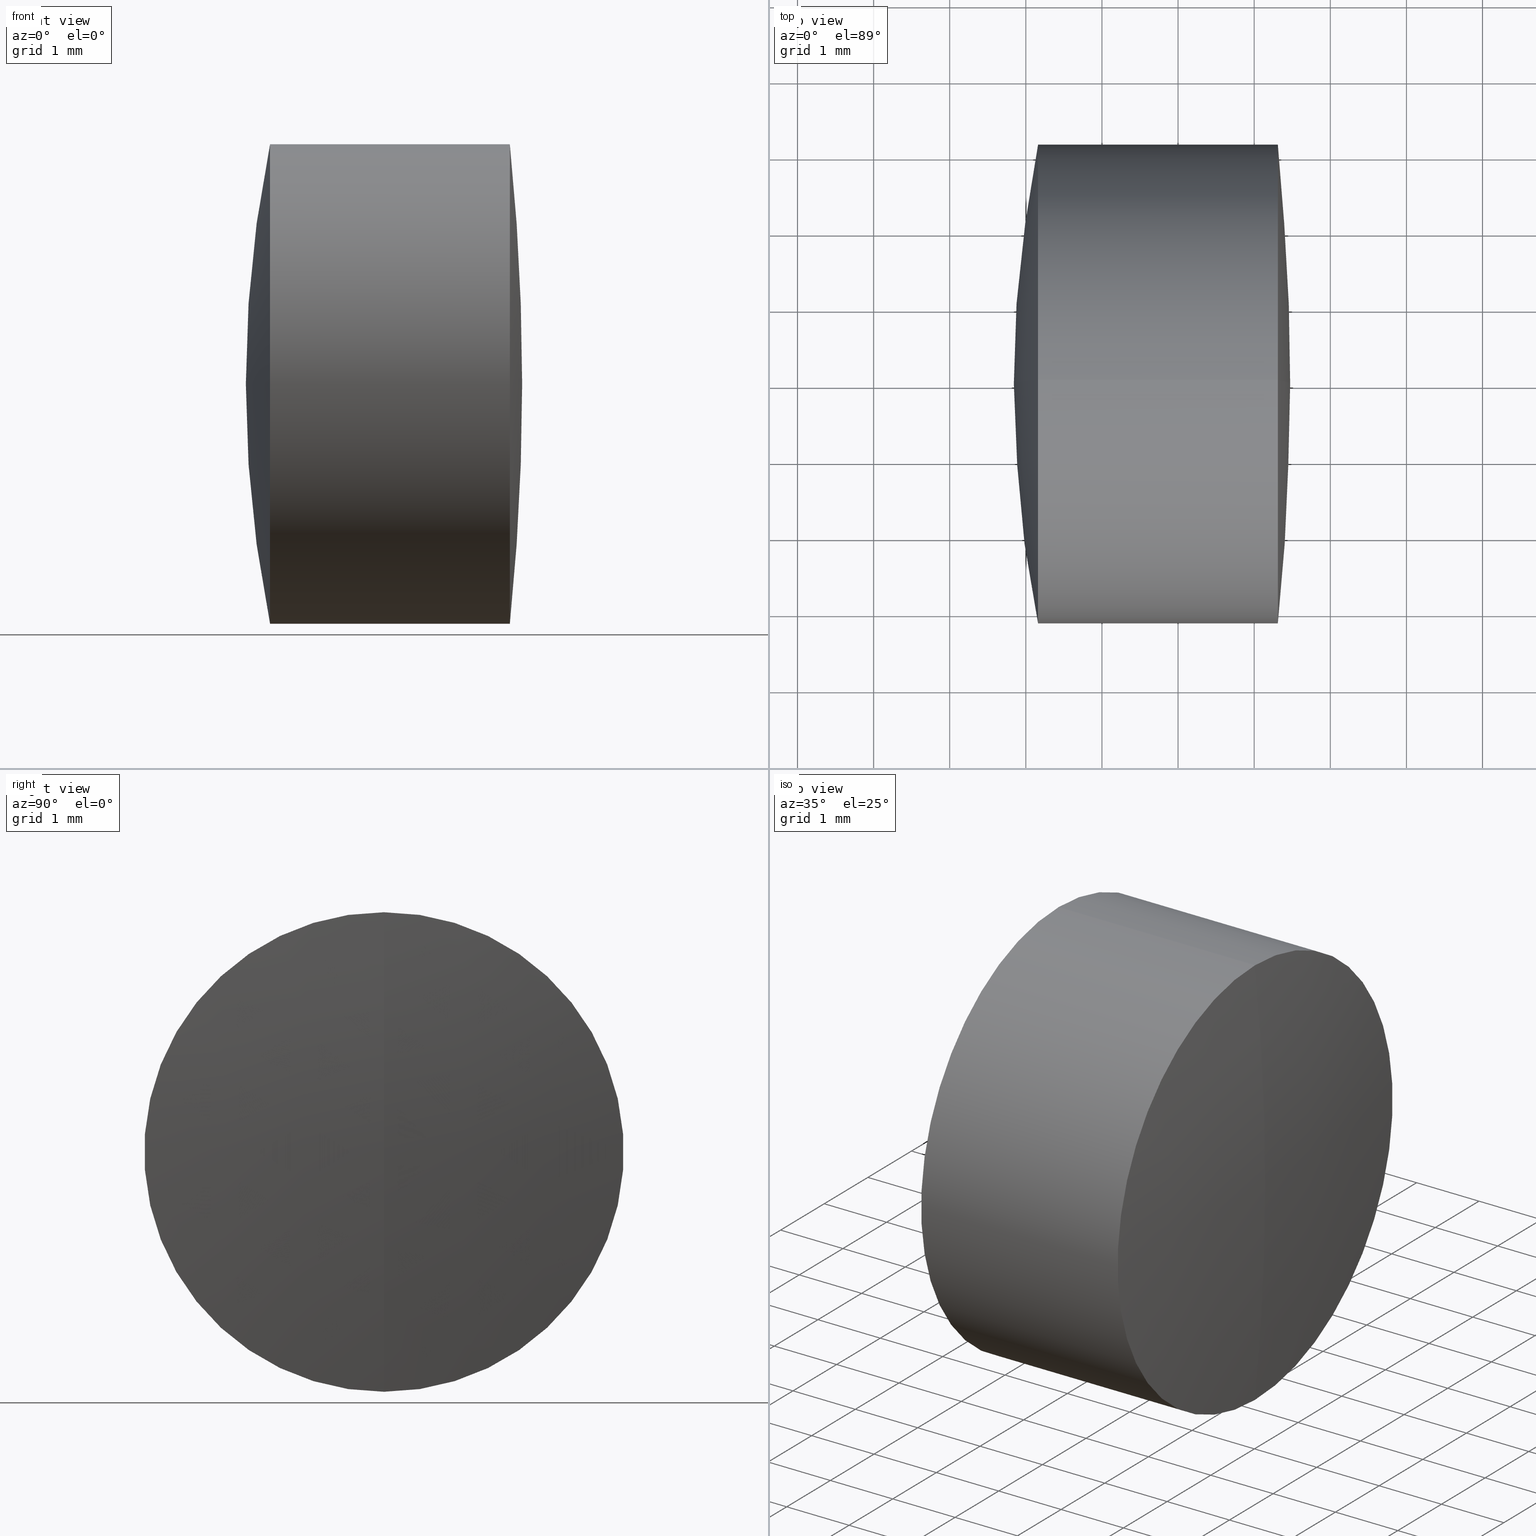
[diagram: canonical four-view strip — front | top / right | iso, engineering-drawing reading convention]
A machine part, canonical four-view strip (front | top / right | iso — engineering-drawing reading convention). The complete STEP part file that produces these views, byte-faithful:
ISO-10303-21;
HEADER;
FILE_DESCRIPTION (( 'STEP AP214' ),
    '1' );
FILE_NAME ('145011.STEP',
    '2019-05-07T03:39:07',
    ( 'user' ),
    ( '΢���й�' ),
    'SwSTEP 2.0',
    'SolidWorks 2016',
    '' );
FILE_SCHEMA (( 'AUTOMOTIVE_DESIGN' ));
ENDSEC;

DATA;
#1 = EDGE_CURVE ( 'NONE', #43, #34, #5, .T. ) ;
#2 = PRESENTATION_STYLE_ASSIGNMENT (( #296 ) ) ;
#3 = AXIS2_PLACEMENT_3D ( 'NONE', #249, #35, #138 ) ;
#4 = CLOSED_SHELL ( 'NONE', ( #106, #344, #24, #136, #272, #47 ) ) ;
#5 = LINE ( 'NONE', #149, #148 ) ;
#6 = CIRCLE ( 'NONE', #116, 3.149999999999993700 ) ;
#7 = CARTESIAN_POINT ( 'NONE',  ( -0.9204062977584012200, 0.0000000000000000000, -1.505155105265747400E-016 ) ) ;
#8 = DIRECTION ( 'NONE',  ( -1.000000000000000000, -0.0000000000000000000, -0.0000000000000000000 ) ) ;
#9 = COLOUR_RGB ( '',1.000000000000000000, 1.000000000000000000, 1.000000000000000000 ) ;
#10 = ORIENTED_EDGE ( 'NONE', *, *, #119, .F. ) ;
#11 = SURFACE_STYLE_FILL_AREA ( #174 ) ;
#12 = CARTESIAN_POINT ( 'NONE',  ( -0.8160621761658039000, 0.0000000000000000000, 0.0000000000000000000 ) ) ;
#13 = ORIENTED_EDGE ( 'NONE', *, *, #76, .F. ) ;
#14 = CIRCLE ( 'NONE', #343, 9.992999999999998600 ) ;
#15 = ORIENTED_EDGE ( 'NONE', *, *, #132, .T. ) ;
#16 = CARTESIAN_POINT ( 'NONE',  ( -20.28640629775840400, 0.0000000000000000000, 0.0000000000000000000 ) ) ;
#17 = EDGE_CURVE ( 'NONE', #43, #61, #6, .T. ) ;
#18 = CIRCLE ( 'NONE', #134, 9.992999999999998600 ) ;
#19 = CLOSED_SHELL ( 'NONE', ( #243, #216, #246, #29, #22, #77 ) ) ;
#20 = AXIS2_PLACEMENT_3D ( 'NONE', #146, #112, #142 ) ;
#21 = DIRECTION ( 'NONE',  ( 0.0000000000000000000, 1.000000000000000000, -0.0000000000000000000 ) ) ;
#22 = ADVANCED_FACE ( 'NONE', ( #292 ), #278, .T. ) ;
#23 = CARTESIAN_POINT ( 'NONE',  ( 8.563134654860508700, 0.0000000000000000000, 0.0000000000000000000 ) ) ;
#24 = ADVANCED_FACE ( 'NONE', ( #154 ), #215, .F. ) ;
#25 = DIRECTION ( 'NONE',  ( 0.0000000000000000000, 0.0000000000000000000, 1.000000000000000000 ) ) ;
#26 = EDGE_CURVE ( 'NONE', #290, #34, #241, .T. ) ;
#27 = AXIS2_PLACEMENT_3D ( 'NONE', #261, #91, #283 ) ;
#28 = DIRECTION ( 'NONE',  ( 0.0000000000000000000, -1.000000000000000000, 0.0000000000000000000 ) ) ;
#29 = ADVANCED_FACE ( 'NONE', ( #206 ), #49, .T. ) ;
#30 = ORIENTED_EDGE ( 'NONE', *, *, #342, .T. ) ;
#31 = CYLINDRICAL_SURFACE ( 'NONE', #20, 3.149999999999999900 ) ;
#32 = DIRECTION ( 'NONE',  ( -1.000000000000000000, -0.0000000000000000000, -0.0000000000000000000 ) ) ;
#33 = AXIS2_PLACEMENT_3D ( 'NONE', #23, #217, #25 ) ;
#34 = VERTEX_POINT ( 'NONE', #209 ) ;
#35 = DIRECTION ( 'NONE',  ( 0.0000000000000000000, -1.000000000000000000, 0.0000000000000000000 ) ) ;
#36 = DIRECTION ( 'NONE',  ( 0.0000000000000000000, -1.000000000000000000, 0.0000000000000000000 ) ) ;
#37 =( NAMED_UNIT ( * ) PLANE_ANGLE_UNIT ( ) SI_UNIT ( $, .RADIAN. ) );
#38 =( NAMED_UNIT ( * ) SI_UNIT ( $, .STERADIAN. ) SOLID_ANGLE_UNIT ( ) );
#39 = ORIENTED_EDGE ( 'NONE', *, *, #273, .F. ) ;
#40 = FACE_OUTER_BOUND ( 'NONE', #248, .T. ) ;
#41 = AXIS2_PLACEMENT_3D ( 'NONE', #7, #118, #225 ) ;
#42 = COLOUR_RGB ( '',1.000000000000000000, 1.000000000000000000, 1.000000000000000000 ) ;
#43 = VERTEX_POINT ( 'NONE', #104 ) ;
#44 = EDGE_CURVE ( 'NONE', #195, #117, #222, .T. ) ;
#45 = ORIENTED_EDGE ( 'NONE', *, *, #50, .T. ) ;
#46 =( NAMED_UNIT ( * ) SI_UNIT ( $, .STERADIAN. ) SOLID_ANGLE_UNIT ( ) );
#47 = ADVANCED_FACE ( 'NONE', ( #320 ), #304, .T. ) ;
#48 = CIRCLE ( 'NONE', #173, 3.149999999999999900 ) ;
#49 = SPHERICAL_SURFACE ( 'NONE', #208, 15.75900000000000200 ) ;
#50 = EDGE_CURVE ( 'NONE', #195, #267, #55, .T. ) ;
#51 = EDGE_LOOP ( 'NONE', ( #235, #281, #259, #336 ) ) ;
#52 = CIRCLE ( 'NONE', #96, 3.149999999999994100 ) ;
#53 = AXIS2_PLACEMENT_3D ( 'NONE', #62, #330, #59 ) ;
#54 = ADVANCED_BREP_SHAPE_REPRESENTATION ( '145011', ( #115, #335, #287 ), #194 ) ;
#55 = CIRCLE ( 'NONE', #68, 3.149999999999999900 ) ;
#56 = SURFACE_SIDE_STYLE ('',( #302 ) ) ;
#57 = ORIENTED_EDGE ( 'NONE', *, *, #342, .F. ) ;
#58 = DIRECTION ( 'NONE',  ( -1.000000000000000000, -0.0000000000000000000, -0.0000000000000000000 ) ) ;
#59 = DIRECTION ( 'NONE',  ( 0.0000000000000000000, 0.0000000000000000000, 1.000000000000000000 ) ) ;
#60 = AXIS2_PLACEMENT_3D ( 'NONE', #12, #151, #101 ) ;
#61 = VERTEX_POINT ( 'NONE', #274 ) ;
#62 = CARTESIAN_POINT ( 'NONE',  ( -20.28640629775840400, 0.0000000000000000000, 0.0000000000000000000 ) ) ;
#63 = CARTESIAN_POINT ( 'NONE',  ( -0.5519199926577972300, 0.0000000000000000000, 0.0000000000000000000 ) ) ;
#64 = APPLICATION_CONTEXT ( 'automotive_design' ) ;
#65 = CIRCLE ( 'NONE', #33, 3.149999999999999900 ) ;
#66 = APPLICATION_CONTEXT ( 'automotive_design' ) ;
#67 = EDGE_CURVE ( 'NONE', #141, #200, #18, .T. ) ;
#68 = AXIS2_PLACEMENT_3D ( 'NONE', #327, #196, #230 ) ;
#69 =( NAMED_UNIT ( * ) PLANE_ANGLE_UNIT ( ) SI_UNIT ( $, .RADIAN. ) );
#70 = DIRECTION ( 'NONE',  ( 0.0000000000000000000, 0.0000000000000000000, 1.000000000000000000 ) ) ;
#71 = ORIENTED_EDGE ( 'NONE', *, *, #26, .T. ) ;
#72 = FILL_AREA_STYLE_COLOUR ( '', #42 ) ;
#73 = UNCERTAINTY_MEASURE_WITH_UNIT (LENGTH_MEASURE( 1.000000000000000100E-005 ), #237, 'distance_accuracy_value', 'NONE');
#74 = AXIS2_PLACEMENT_3D ( 'NONE', #279, #280, #256 ) ;
#75 = CARTESIAN_POINT ( 'NONE',  ( -0.5519199926577972300, 0.0000000000000000000, 3.149999999999994100 ) ) ;
#76 = EDGE_CURVE ( 'NONE', #171, #195, #83, .T. ) ;
#77 = ADVANCED_FACE ( 'NONE', ( #255 ), #310, .T. ) ;
#78 = CARTESIAN_POINT ( 'NONE',  ( -0.9204062977584012200, 0.0000000000000000000, -1.505155105265747400E-016 ) ) ;
#79 = ORIENTED_EDGE ( 'NONE', *, *, #17, .F. ) ;
#80 = AXIS2_PLACEMENT_3D ( 'NONE', #334, #156, #239 ) ;
#81 =( NAMED_UNIT ( * ) PLANE_ANGLE_UNIT ( ) SI_UNIT ( $, .RADIAN. ) );
#82 = ORIENTED_EDGE ( 'NONE', *, *, #44, .F. ) ;
#83 = LINE ( 'NONE', #263, #179 ) ;
#84 =( NAMED_UNIT ( * ) SI_UNIT ( $, .STERADIAN. ) SOLID_ANGLE_UNIT ( ) );
#85 = EDGE_CURVE ( 'NONE', #157, #61, #220, .T. ) ;
#86 = AXIS2_PLACEMENT_3D ( 'NONE', #226, #87, #347 ) ;
#87 = DIRECTION ( 'NONE',  ( 0.0000000000000000000, 1.000000000000000000, 0.0000000000000000000 ) ) ;
#88 = EDGE_LOOP ( 'NONE', ( #333, #251, #103 ) ) ;
#89 = COLOUR_RGB ( '',1.000000000000000000, 1.000000000000000000, 1.000000000000000000 ) ;
#90 = CARTESIAN_POINT ( 'NONE',  ( 6.842593702241595500, 0.0000000000000000000, -9.328835461776508400E-016 ) ) ;
#91 = DIRECTION ( 'NONE',  ( -0.0000000000000000000, 1.000000000000000000, 1.224646799147353200E-016 ) ) ;
#92 = AXIS2_PLACEMENT_3D ( 'NONE', #308, #193, #126 ) ;
#93 = CIRCLE ( 'NONE', #188, 3.149999999999999900 ) ;
#94 = FACE_OUTER_BOUND ( 'NONE', #229, .T. ) ;
#95 = DIRECTION ( 'NONE',  ( 1.000000000000000000, 0.0000000000000000000, 0.0000000000000000000 ) ) ;
#96 = AXIS2_PLACEMENT_3D ( 'NONE', #303, #110, #172 ) ;
#97 = PRODUCT ( '145011', '145011', '', ( #339 ) ) ;
#98 = ORIENTED_EDGE ( 'NONE', *, *, #323, .T. ) ;
#99 = CARTESIAN_POINT ( 'NONE',  ( 8.563134654860508700, 0.0000000000000000000, 0.0000000000000000000 ) ) ;
#100 = EDGE_LOOP ( 'NONE', ( #346, #15, #289, #13 ) ) ;
#101 = DIRECTION ( 'NONE',  ( 0.0000000000000000000, 0.0000000000000000000, 1.000000000000000000 ) ) ;
#102 =( GEOMETRIC_REPRESENTATION_CONTEXT ( 3 ) GLOBAL_UNCERTAINTY_ASSIGNED_CONTEXT ( ( #210 ) ) GLOBAL_UNIT_ASSIGNED_CONTEXT ( ( #122, #37, #84 ) ) REPRESENTATION_CONTEXT ( 'NONE', 'WORKASPACE' ) );
#103 = ORIENTED_EDGE ( 'NONE', *, *, #341, .F. ) ;
#104 = CARTESIAN_POINT ( 'NONE',  ( 10.31087431670144000, 3.857637417314154800E-016, -3.149999999999993700 ) ) ;
#105 = CYLINDRICAL_SURFACE ( 'NONE', #127, 3.149999999999994100 ) ;
#106 = ADVANCED_FACE ( 'NONE', ( #254 ), #262, .T. ) ;
#107 = MECHANICAL_DESIGN_GEOMETRIC_PRESENTATION_REPRESENTATION (  '', ( #140 ), #102 ) ;
#108 = DIRECTION ( 'NONE',  ( 0.0000000000000000000, 0.0000000000000000000, 1.000000000000000000 ) ) ;
#109 = CARTESIAN_POINT ( 'NONE',  ( 7.160622845459306200, -3.857637417314162200E-016, 3.149999999999999500 ) ) ;
#110 = DIRECTION ( 'NONE',  ( -1.000000000000000000, -0.0000000000000000000, -0.0000000000000000000 ) ) ;
#111 = ORIENTED_EDGE ( 'NONE', *, *, #165, .T. ) ;
#112 = DIRECTION ( 'NONE',  ( -1.000000000000000000, -0.0000000000000000000, -0.0000000000000000000 ) ) ;
#113 = UNCERTAINTY_MEASURE_WITH_UNIT (LENGTH_MEASURE( 1.000000000000000100E-005 ), #345, 'distance_accuracy_value', 'NONE');
#114 = PRESENTATION_LAYER_ASSIGNMENT (  '', '', ( #140 ) ) ;
#115 = MANIFOLD_SOLID_BREP ( '��ת1', #19 ) ;
#116 = AXIS2_PLACEMENT_3D ( 'NONE', #164, #202, #108 ) ;
#117 = VERTEX_POINT ( 'NONE', #90 ) ;
#118 = DIRECTION ( 'NONE',  ( 0.0000000000000000000, 1.000000000000000000, 0.0000000000000000000 ) ) ;
#119 = EDGE_CURVE ( 'NONE', #61, #43, #247, .T. ) ;
#120 = DIRECTION ( 'NONE',  ( -1.000000000000000000, -0.0000000000000000000, -0.0000000000000000000 ) ) ;
#121 = STYLED_ITEM ( 'NONE', ( #130 ), #335 ) ;
#122 =( LENGTH_UNIT ( ) NAMED_UNIT ( * ) SI_UNIT ( .MILLI., .METRE. ) );
#123 = VECTOR ( 'NONE', #129, 1000.000000000000000 ) ;
#124 = DIRECTION ( 'NONE',  ( 0.0000000000000000000, 0.0000000000000000000, 1.000000000000000000 ) ) ;
#125 = LINE ( 'NONE', #258, #123 ) ;
#126 = DIRECTION ( 'NONE',  ( 0.0000000000000000000, 0.0000000000000000000, 1.000000000000000000 ) ) ;
#127 = AXIS2_PLACEMENT_3D ( 'NONE', #63, #152, #124 ) ;
#128 = DIRECTION ( 'NONE',  ( -1.000000000000000000, -0.0000000000000000000, -0.0000000000000000000 ) ) ;
#129 = DIRECTION ( 'NONE',  ( -1.000000000000000000, -0.0000000000000000000, -0.0000000000000000000 ) ) ;
#130 = PRESENTATION_STYLE_ASSIGNMENT (( #137 ) ) ;
#131 = ORIENTED_EDGE ( 'NONE', *, *, #44, .T. ) ;
#132 = EDGE_CURVE ( 'NONE', #200, #267, #125, .T. ) ;
#133 = DIRECTION ( 'NONE',  ( -0.0000000000000000000, 1.000000000000000000, 1.224646799147353200E-016 ) ) ;
#134 = AXIS2_PLACEMENT_3D ( 'NONE', #78, #253, #192 ) ;
#135 = ORIENTED_EDGE ( 'NONE', *, *, #184, .T. ) ;
#136 = ADVANCED_FACE ( 'NONE', ( #94 ), #180, .F. ) ;
#137 = SURFACE_STYLE_USAGE ( .BOTH. , #295 ) ;
#138 = DIRECTION ( 'NONE',  ( 0.0000000000000000000, 0.0000000000000000000, -1.000000000000000000 ) ) ;
#139 = EDGE_LOOP ( 'NONE', ( #331, #144, #212, #191 ) ) ;
#140 = STYLED_ITEM ( 'NONE', ( #277 ), #115 ) ;
#141 = VERTEX_POINT ( 'NONE', #158 ) ;
#142 = DIRECTION ( 'NONE',  ( 0.0000000000000000000, 0.0000000000000000000, 1.000000000000000000 ) ) ;
#143 = FACE_OUTER_BOUND ( 'NONE', #275, .T. ) ;
#144 = ORIENTED_EDGE ( 'NONE', *, *, #1, .T. ) ;
#145 = SURFACE_SIDE_STYLE ('',( #11 ) ) ;
#146 = CARTESIAN_POINT ( 'NONE',  ( -0.8160621761658039000, 0.0000000000000000000, 0.0000000000000000000 ) ) ;
#147 = AXIS2_PLACEMENT_3D ( 'NONE', #288, #32, #252 ) ;
#148 = VECTOR ( 'NONE', #161, 1000.000000000000000 ) ;
#149 = CARTESIAN_POINT ( 'NONE',  ( -0.5519199926577972300, 3.857637417314155300E-016, -3.149999999999994100 ) ) ;
#150 = DIRECTION ( 'NONE',  ( 0.0000000000000000000, 1.000000000000000000, 0.0000000000000000000 ) ) ;
#151 = DIRECTION ( 'NONE',  ( -1.000000000000000000, -0.0000000000000000000, -0.0000000000000000000 ) ) ;
#152 = DIRECTION ( 'NONE',  ( -1.000000000000000000, -0.0000000000000000000, -0.0000000000000000000 ) ) ;
#153 = FACE_OUTER_BOUND ( 'NONE', #284, .T. ) ;
#154 = FACE_OUTER_BOUND ( 'NONE', #271, .T. ) ;
#155 = AXIS2_PLACEMENT_3D ( 'NONE', #293, #133, #232 ) ;
#156 = DIRECTION ( 'NONE',  ( 0.0000000000000000000, 1.000000000000000000, 0.0000000000000000000 ) ) ;
#157 = VERTEX_POINT ( 'NONE', #219 ) ;
#158 = CARTESIAN_POINT ( 'NONE',  ( 9.072593702241597700, 0.0000000000000000000, 4.613792626674001800E-016 ) ) ;
#159 = PRESENTATION_LAYER_ASSIGNMENT (  '', '', ( #121 ) ) ;
#160 = ORIENTED_EDGE ( 'NONE', *, *, #218, .F. ) ;
#161 = DIRECTION ( 'NONE',  ( -1.000000000000000000, -0.0000000000000000000, -0.0000000000000000000 ) ) ;
#162 = SHAPE_DEFINITION_REPRESENTATION ( #198, #54 ) ;
#163 = CARTESIAN_POINT ( 'NONE',  ( 0.0000000000000000000, 0.0000000000000000000, 0.0000000000000000000 ) ) ;
#164 = CARTESIAN_POINT ( 'NONE',  ( 10.31087431670144000, 0.0000000000000000000, 0.0000000000000000000 ) ) ;
#165 = EDGE_CURVE ( 'NONE', #326, #34, #325, .T. ) ;
#166 = MECHANICAL_DESIGN_GEOMETRIC_PRESENTATION_REPRESENTATION (  '', ( #121 ), #177 ) ;
#167 = EDGE_LOOP ( 'NONE', ( #204, #223, #79 ) ) ;
#168 = DIRECTION ( 'NONE',  ( 0.0000000000000000000, 0.0000000000000000000, -1.000000000000000000 ) ) ;
#169 = FILL_AREA_STYLE_COLOUR ( '', #89 ) ;
#170 = EDGE_CURVE ( 'NONE', #141, #171, #233, .T. ) ;
#171 = VERTEX_POINT ( 'NONE', #199 ) ;
#172 = DIRECTION ( 'NONE',  ( 0.0000000000000000000, 0.0000000000000000000, 1.000000000000000000 ) ) ;
#173 = AXIS2_PLACEMENT_3D ( 'NONE', #338, #322, #70 ) ;
#174 = FILL_AREA_STYLE ('',( #169 ) ) ;
#175 = CARTESIAN_POINT ( 'NONE',  ( 8.563134654860508700, 0.0000000000000000000, 0.0000000000000000000 ) ) ;
#176 = CARTESIAN_POINT ( 'NONE',  ( -20.28640629775840400, 0.0000000000000000000, 0.0000000000000000000 ) ) ;
#177 =( GEOMETRIC_REPRESENTATION_CONTEXT ( 3 ) GLOBAL_UNCERTAINTY_ASSIGNED_CONTEXT ( ( #240 ) ) GLOBAL_UNIT_ASSIGNED_CONTEXT ( ( #211, #81, #38 ) ) REPRESENTATION_CONTEXT ( 'NONE', 'WORKASPACE' ) );
#178 = DIRECTION ( 'NONE',  ( 0.0000000000000000000, 0.0000000000000000000, -1.000000000000000000 ) ) ;
#179 = VECTOR ( 'NONE', #8, 1000.000000000000000 ) ;
#180 = SPHERICAL_SURFACE ( 'NONE', #41, 9.992999999999998600 ) ;
#181 = CIRCLE ( 'NONE', #27, 30.75900000000000400 ) ;
#182 = CARTESIAN_POINT ( 'NONE',  ( 9.072593702241597700, 0.0000000000000000000, 4.613792626674001800E-016 ) ) ;
#183 = ORIENTED_EDGE ( 'NONE', *, *, #85, .F. ) ;
#184 = EDGE_CURVE ( 'NONE', #34, #326, #52, .T. ) ;
#185 = AXIS2_PLACEMENT_3D ( 'NONE', #314, #21, #264 ) ;
#186 = DIRECTION ( 'NONE',  ( -1.000000000000000000, -0.0000000000000000000, -0.0000000000000000000 ) ) ;
#187 = ORIENTED_EDGE ( 'NONE', *, *, #273, .T. ) ;
#188 = AXIS2_PLACEMENT_3D ( 'NONE', #99, #128, #312 ) ;
#189 = CARTESIAN_POINT ( 'NONE',  ( 8.563134654860508700, 0.0000000000000000000, 3.149999999999994100 ) ) ;
#190 = SPHERICAL_SURFACE ( 'NONE', #329, 15.75900000000000200 ) ;
#191 = ORIENTED_EDGE ( 'NONE', *, *, #323, .F. ) ;
#192 = DIRECTION ( 'NONE',  ( 0.0000000000000000000, -1.224646799147353200E-016, 1.000000000000000000 ) ) ;
#193 = DIRECTION ( 'NONE',  ( 0.0000000000000000000, 1.000000000000000000, 0.0000000000000000000 ) ) ;
#194 =( GEOMETRIC_REPRESENTATION_CONTEXT ( 3 ) GLOBAL_UNCERTAINTY_ASSIGNED_CONTEXT ( ( #73 ) ) GLOBAL_UNIT_ASSIGNED_CONTEXT ( ( #237, #69, #291 ) ) REPRESENTATION_CONTEXT ( 'NONE', 'WORKASPACE' ) );
#195 = VERTEX_POINT ( 'NONE', #109 ) ;
#196 = DIRECTION ( 'NONE',  ( -1.000000000000000000, -0.0000000000000000000, -0.0000000000000000000 ) ) ;
#197 = FACE_OUTER_BOUND ( 'NONE', #139, .T. ) ;
#198 = PRODUCT_DEFINITION_SHAPE ( 'NONE', 'NONE',  #294 ) ;
#199 = CARTESIAN_POINT ( 'NONE',  ( 8.563134654860508700, 0.0000000000000000000, 3.149999999999999900 ) ) ;
#200 = VERTEX_POINT ( 'NONE', #257 ) ;
#201 = FILL_AREA_STYLE_COLOUR ( '', #9 ) ;
#202 = DIRECTION ( 'NONE',  ( -1.000000000000000000, -0.0000000000000000000, -0.0000000000000000000 ) ) ;
#203 = FILL_AREA_STYLE ('',( #201 ) ) ;
#204 = ORIENTED_EDGE ( 'NONE', *, *, #234, .F. ) ;
#205 = DIRECTION ( 'NONE',  ( 0.0000000000000000000, 0.0000000000000000000, 1.000000000000000000 ) ) ;
#206 = FACE_OUTER_BOUND ( 'NONE', #221, .T. ) ;
#207 = ORIENTED_EDGE ( 'NONE', *, *, #67, .T. ) ;
#208 = AXIS2_PLACEMENT_3D ( 'NONE', #286, #276, #332 ) ;
#209 = CARTESIAN_POINT ( 'NONE',  ( 8.563134654860508700, 3.857637417314155300E-016, -3.149999999999994100 ) ) ;
#210 = UNCERTAINTY_MEASURE_WITH_UNIT (LENGTH_MEASURE( 1.000000000000000100E-005 ), #122, 'distance_accuracy_value', 'NONE');
#211 =( LENGTH_UNIT ( ) NAMED_UNIT ( * ) SI_UNIT ( .MILLI., .METRE. ) );
#212 = ORIENTED_EDGE ( 'NONE', *, *, #165, .F. ) ;
#213 = AXIS2_PLACEMENT_3D ( 'NONE', #316, #186, #270 ) ;
#214 = ORIENTED_EDGE ( 'NONE', *, *, #26, .F. ) ;
#215 = SPHERICAL_SURFACE ( 'NONE', #92, 9.992999999999998600 ) ;
#216 = ADVANCED_FACE ( 'NONE', ( #231 ), #31, .T. ) ;
#217 = DIRECTION ( 'NONE',  ( -1.000000000000000000, -0.0000000000000000000, -0.0000000000000000000 ) ) ;
#218 = EDGE_CURVE ( 'NONE', #171, #200, #65, .T. ) ;
#219 = CARTESIAN_POINT ( 'NONE',  ( 10.47259370224160000, 0.0000000000000000000, 1.883445544748672300E-015 ) ) ;
#220 = CIRCLE ( 'NONE', #319, 30.75900000000000400 ) ;
#221 = EDGE_LOOP ( 'NONE', ( #82, #45, #30 ) ) ;
#222 = CIRCLE ( 'NONE', #74, 15.75900000000000200 ) ;
#223 = ORIENTED_EDGE ( 'NONE', *, *, #85, .T. ) ;
#224 = PRESENTATION_LAYER_ASSIGNMENT (  '', '', ( #228 ) ) ;
#225 = DIRECTION ( 'NONE',  ( 0.0000000000000000000, 0.0000000000000000000, 1.000000000000000000 ) ) ;
#226 = CARTESIAN_POINT ( 'NONE',  ( -0.9204062977584012200, 0.0000000000000000000, -1.505155105265747400E-016 ) ) ;
#227 = ORIENTED_EDGE ( 'NONE', *, *, #184, .F. ) ;
#228 = STYLED_ITEM ( 'NONE', ( #2 ), #54 ) ;
#229 = EDGE_LOOP ( 'NONE', ( #214, #187, #111 ) ) ;
#230 = DIRECTION ( 'NONE',  ( 0.0000000000000000000, 0.0000000000000000000, 1.000000000000000000 ) ) ;
#231 = FACE_OUTER_BOUND ( 'NONE', #100, .T. ) ;
#232 = DIRECTION ( 'NONE',  ( 0.0000000000000000000, -1.224646799147353200E-016, 1.000000000000000000 ) ) ;
#233 = CIRCLE ( 'NONE', #3, 9.992999999999998600 ) ;
#234 = EDGE_CURVE ( 'NONE', #157, #43, #181, .T. ) ;
#235 = ORIENTED_EDGE ( 'NONE', *, *, #132, .F. ) ;
#236 =( GEOMETRIC_REPRESENTATION_CONTEXT ( 3 ) GLOBAL_UNCERTAINTY_ASSIGNED_CONTEXT ( ( #113 ) ) GLOBAL_UNIT_ASSIGNED_CONTEXT ( ( #345, #265, #46 ) ) REPRESENTATION_CONTEXT ( 'NONE', 'WORKASPACE' ) );
#237 =( LENGTH_UNIT ( ) NAMED_UNIT ( * ) SI_UNIT ( .MILLI., .METRE. ) );
#238 = FILL_AREA_STYLE ('',( #72 ) ) ;
#239 = DIRECTION ( 'NONE',  ( 0.0000000000000000000, 0.0000000000000000000, 1.000000000000000000 ) ) ;
#240 = UNCERTAINTY_MEASURE_WITH_UNIT (LENGTH_MEASURE( 1.000000000000000100E-005 ), #211, 'distance_accuracy_value', 'NONE');
#241 = CIRCLE ( 'NONE', #155, 9.992999999999998600 ) ;
#242 = CARTESIAN_POINT ( 'NONE',  ( -0.9204062977584012200, 0.0000000000000000000, -1.505155105265747400E-016 ) ) ;
#243 = ADVANCED_FACE ( 'NONE', ( #143 ), #321, .T. ) ;
#244 = MECHANICAL_DESIGN_GEOMETRIC_PRESENTATION_REPRESENTATION (  '', ( #228 ), #236 ) ;
#245 = DIRECTION ( 'NONE',  ( 0.0000000000000000000, 0.0000000000000000000, 1.000000000000000000 ) ) ;
#246 = ADVANCED_FACE ( 'NONE', ( #40 ), #190, .T. ) ;
#247 = CIRCLE ( 'NONE', #147, 3.149999999999993700 ) ;
#248 = EDGE_LOOP ( 'NONE', ( #309, #131, #57 ) ) ;
#249 = CARTESIAN_POINT ( 'NONE',  ( -0.9204062977584012200, 0.0000000000000000000, -1.505155105265747400E-016 ) ) ;
#250 = APPLICATION_PROTOCOL_DEFINITION ( 'draft international standard', 'automotive_design', 1998, #64 ) ;
#251 = ORIENTED_EDGE ( 'NONE', *, *, #170, .T. ) ;
#252 = DIRECTION ( 'NONE',  ( 0.0000000000000000000, 0.0000000000000000000, 1.000000000000000000 ) ) ;
#253 = DIRECTION ( 'NONE',  ( -0.0000000000000000000, 1.000000000000000000, 1.224646799147353200E-016 ) ) ;
#254 = FACE_OUTER_BOUND ( 'NONE', #315, .T. ) ;
#255 = FACE_OUTER_BOUND ( 'NONE', #88, .T. ) ;
#256 = DIRECTION ( 'NONE',  ( 0.0000000000000000000, 1.224646799147353200E-016, -1.000000000000000000 ) ) ;
#257 = CARTESIAN_POINT ( 'NONE',  ( 8.563134654860508700, 3.857637417314162700E-016, -3.149999999999999900 ) ) ;
#258 = CARTESIAN_POINT ( 'NONE',  ( -0.8160621761658039000, 3.857637417314162700E-016, -3.149999999999999900 ) ) ;
#259 = ORIENTED_EDGE ( 'NONE', *, *, #76, .T. ) ;
#260 = CIRCLE ( 'NONE', #185, 15.75900000000000200 ) ;
#261 = CARTESIAN_POINT ( 'NONE',  ( -20.28640629775840400, 0.0000000000000000000, 0.0000000000000000000 ) ) ;
#262 = SPHERICAL_SURFACE ( 'NONE', #53, 30.75900000000000400 ) ;
#263 = CARTESIAN_POINT ( 'NONE',  ( -0.8160621761658039000, 0.0000000000000000000, 3.149999999999999900 ) ) ;
#264 = DIRECTION ( 'NONE',  ( 0.0000000000000000000, 0.0000000000000000000, 1.000000000000000000 ) ) ;
#265 =( NAMED_UNIT ( * ) PLANE_ANGLE_UNIT ( ) SI_UNIT ( $, .RADIAN. ) );
#266 = DIRECTION ( 'NONE',  ( -0.0000000000000000000, -1.000000000000000000, -0.0000000000000000000 ) ) ;
#267 = VERTEX_POINT ( 'NONE', #317 ) ;
#268 = AXIS2_PLACEMENT_3D ( 'NONE', #175, #58, #205 ) ;
#269 = APPLICATION_PROTOCOL_DEFINITION ( 'draft international standard', 'automotive_design', 1998, #66 ) ;
#270 = DIRECTION ( 'NONE',  ( 0.0000000000000000000, 0.0000000000000000000, 1.000000000000000000 ) ) ;
#271 = EDGE_LOOP ( 'NONE', ( #39, #71, #135 ) ) ;
#272 = ADVANCED_FACE ( 'NONE', ( #153 ), #105, .T. ) ;
#273 = EDGE_CURVE ( 'NONE', #290, #326, #14, .T. ) ;
#274 = CARTESIAN_POINT ( 'NONE',  ( 10.31087431670144000, 0.0000000000000000000, 3.149999999999993700 ) ) ;
#275 = EDGE_LOOP ( 'NONE', ( #328, #207, #160 ) ) ;
#276 = DIRECTION ( 'NONE',  ( -0.0000000000000000000, -1.000000000000000000, -0.0000000000000000000 ) ) ;
#277 = PRESENTATION_STYLE_ASSIGNMENT (( #282 ) ) ;
#278 = CYLINDRICAL_SURFACE ( 'NONE', #60, 3.149999999999999900 ) ;
#279 = CARTESIAN_POINT ( 'NONE',  ( 22.60159370224159800, 0.0000000000000000000, 3.207689921050636000E-017 ) ) ;
#280 = DIRECTION ( 'NONE',  ( 0.0000000000000000000, -1.000000000000000000, -1.224646799147353200E-016 ) ) ;
#281 = ORIENTED_EDGE ( 'NONE', *, *, #341, .T. ) ;
#282 = SURFACE_STYLE_USAGE ( .BOTH. , #56 ) ;
#283 = DIRECTION ( 'NONE',  ( 0.0000000000000000000, -1.224646799147353500E-016, 1.000000000000000000 ) ) ;
#284 = EDGE_LOOP ( 'NONE', ( #301, #324, #98, #227 ) ) ;
#285 = VECTOR ( 'NONE', #120, 1000.000000000000000 ) ;
#286 = CARTESIAN_POINT ( 'NONE',  ( 22.60159370224159800, 0.0000000000000000000, 3.207689921050636000E-017 ) ) ;
#287 = AXIS2_PLACEMENT_3D ( 'NONE', #163, #245, #95 ) ;
#288 = CARTESIAN_POINT ( 'NONE',  ( 10.31087431670144000, 0.0000000000000000000, 0.0000000000000000000 ) ) ;
#289 = ORIENTED_EDGE ( 'NONE', *, *, #50, .F. ) ;
#290 = VERTEX_POINT ( 'NONE', #182 ) ;
#291 =( NAMED_UNIT ( * ) SI_UNIT ( $, .STERADIAN. ) SOLID_ANGLE_UNIT ( ) );
#292 = FACE_OUTER_BOUND ( 'NONE', #51, .T. ) ;
#293 = CARTESIAN_POINT ( 'NONE',  ( -0.9204062977584012200, 0.0000000000000000000, -1.505155105265747400E-016 ) ) ;
#294 = PRODUCT_DEFINITION ( 'δ֪', '', #305, #337 ) ;
#295 = SURFACE_SIDE_STYLE ('',( #340 ) ) ;
#296 = SURFACE_STYLE_USAGE ( .BOTH. , #145 ) ;
#297 = ORIENTED_EDGE ( 'NONE', *, *, #234, .T. ) ;
#298 = PRODUCT_RELATED_PRODUCT_CATEGORY ( 'part', '', ( #97 ) ) ;
#299 = CYLINDRICAL_SURFACE ( 'NONE', #213, 3.149999999999994100 ) ;
#300 = LINE ( 'NONE', #75, #285 ) ;
#301 = ORIENTED_EDGE ( 'NONE', *, *, #1, .F. ) ;
#302 = SURFACE_STYLE_FILL_AREA ( #203 ) ;
#303 = CARTESIAN_POINT ( 'NONE',  ( 8.563134654860508700, 0.0000000000000000000, 0.0000000000000000000 ) ) ;
#304 = SPHERICAL_SURFACE ( 'NONE', #313, 30.75900000000000400 ) ;
#305 = PRODUCT_DEFINITION_FORMATION_WITH_SPECIFIED_SOURCE ( '�κ�', '', #97, .NOT_KNOWN. ) ;
#306 = DIRECTION ( 'NONE',  ( 0.0000000000000000000, 0.0000000000000000000, 1.000000000000000000 ) ) ;
#307 = DIRECTION ( 'NONE',  ( 0.0000000000000000000, 0.0000000000000000000, -1.000000000000000000 ) ) ;
#308 = CARTESIAN_POINT ( 'NONE',  ( -0.9204062977584012200, 0.0000000000000000000, -1.505155105265747400E-016 ) ) ;
#309 = ORIENTED_EDGE ( 'NONE', *, *, #318, .T. ) ;
#310 = SPHERICAL_SURFACE ( 'NONE', #86, 9.992999999999998600 ) ;
#311 = CARTESIAN_POINT ( 'NONE',  ( 22.60159370224159800, 0.0000000000000000000, 3.207689921050636000E-017 ) ) ;
#312 = DIRECTION ( 'NONE',  ( 0.0000000000000000000, 0.0000000000000000000, 1.000000000000000000 ) ) ;
#313 = AXIS2_PLACEMENT_3D ( 'NONE', #16, #150, #306 ) ;
#314 = CARTESIAN_POINT ( 'NONE',  ( 22.60159370224159800, 0.0000000000000000000, 3.207689921050636000E-017 ) ) ;
#315 = EDGE_LOOP ( 'NONE', ( #183, #297, #10 ) ) ;
#316 = CARTESIAN_POINT ( 'NONE',  ( -0.5519199926577972300, 0.0000000000000000000, 0.0000000000000000000 ) ) ;
#317 = CARTESIAN_POINT ( 'NONE',  ( 7.160622845459306200, 0.0000000000000000000, -3.149999999999999500 ) ) ;
#318 = EDGE_CURVE ( 'NONE', #267, #195, #48, .T. ) ;
#319 = AXIS2_PLACEMENT_3D ( 'NONE', #176, #36, #178 ) ;
#320 = FACE_OUTER_BOUND ( 'NONE', #167, .T. ) ;
#321 = SPHERICAL_SURFACE ( 'NONE', #80, 9.992999999999998600 ) ;
#322 = DIRECTION ( 'NONE',  ( -1.000000000000000000, -0.0000000000000000000, -0.0000000000000000000 ) ) ;
#323 = EDGE_CURVE ( 'NONE', #61, #326, #300, .T. ) ;
#324 = ORIENTED_EDGE ( 'NONE', *, *, #17, .T. ) ;
#325 = CIRCLE ( 'NONE', #268, 3.149999999999994100 ) ;
#326 = VERTEX_POINT ( 'NONE', #189 ) ;
#327 = CARTESIAN_POINT ( 'NONE',  ( 7.160622845459305300, 0.0000000000000000000, 0.0000000000000000000 ) ) ;
#328 = ORIENTED_EDGE ( 'NONE', *, *, #170, .F. ) ;
#329 = AXIS2_PLACEMENT_3D ( 'NONE', #311, #266, #168 ) ;
#330 = DIRECTION ( 'NONE',  ( 0.0000000000000000000, 1.000000000000000000, 0.0000000000000000000 ) ) ;
#331 = ORIENTED_EDGE ( 'NONE', *, *, #119, .T. ) ;
#332 = DIRECTION ( 'NONE',  ( 0.0000000000000000000, 0.0000000000000000000, -1.000000000000000000 ) ) ;
#333 = ORIENTED_EDGE ( 'NONE', *, *, #67, .F. ) ;
#334 = CARTESIAN_POINT ( 'NONE',  ( -0.9204062977584012200, 0.0000000000000000000, -1.505155105265747400E-016 ) ) ;
#335 = MANIFOLD_SOLID_BREP ( '��ת3', #4 ) ;
#336 = ORIENTED_EDGE ( 'NONE', *, *, #318, .F. ) ;
#337 = PRODUCT_DEFINITION_CONTEXT ( 'detailed design', #64, 'design' ) ;
#338 = CARTESIAN_POINT ( 'NONE',  ( 7.160622845459305300, 0.0000000000000000000, 0.0000000000000000000 ) ) ;
#339 = PRODUCT_CONTEXT ( 'NONE', #66, 'mechanical' ) ;
#340 = SURFACE_STYLE_FILL_AREA ( #238 ) ;
#341 = EDGE_CURVE ( 'NONE', #200, #171, #93, .T. ) ;
#342 = EDGE_CURVE ( 'NONE', #267, #117, #260, .T. ) ;
#343 = AXIS2_PLACEMENT_3D ( 'NONE', #242, #28, #307 ) ;
#344 = ADVANCED_FACE ( 'NONE', ( #197 ), #299, .T. ) ;
#345 =( LENGTH_UNIT ( ) NAMED_UNIT ( * ) SI_UNIT ( .MILLI., .METRE. ) );
#346 = ORIENTED_EDGE ( 'NONE', *, *, #218, .T. ) ;
#347 = DIRECTION ( 'NONE',  ( 0.0000000000000000000, 0.0000000000000000000, 1.000000000000000000 ) ) ;
ENDSEC;
END-ISO-10303-21;
